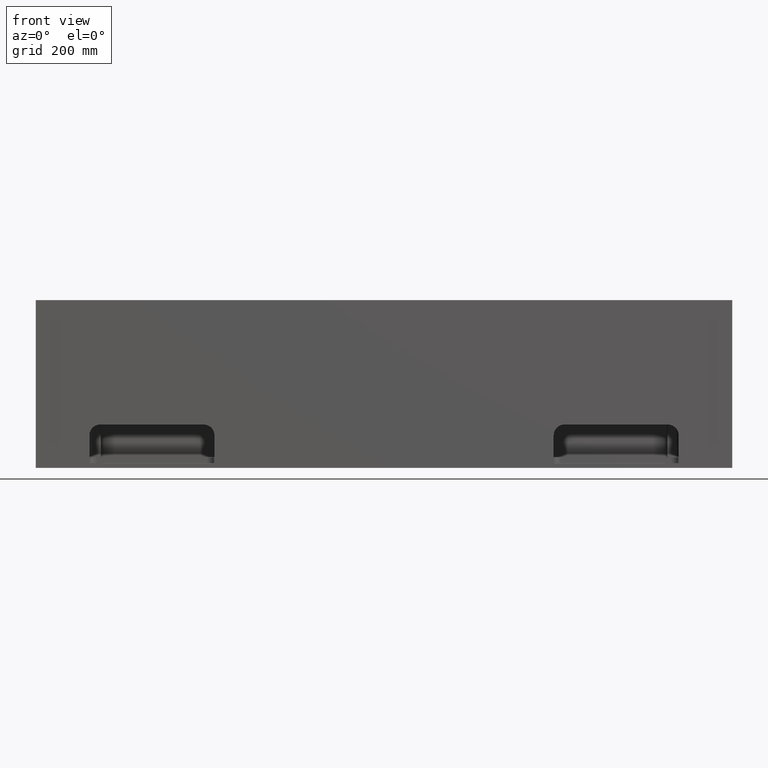
[diagram: clean part render]
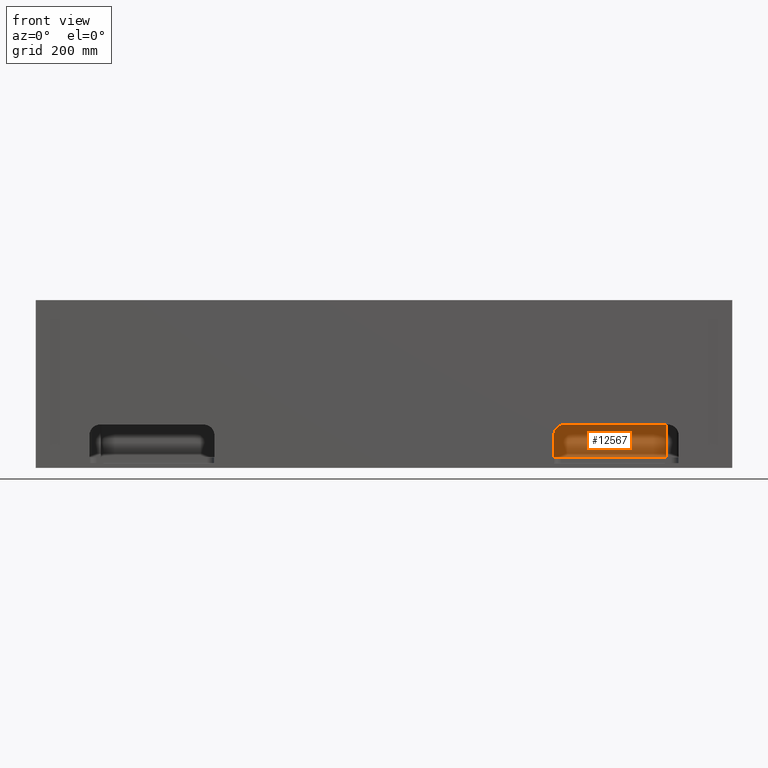
[diagram: same view with one face highlighted and labeled with its STEP entity id]
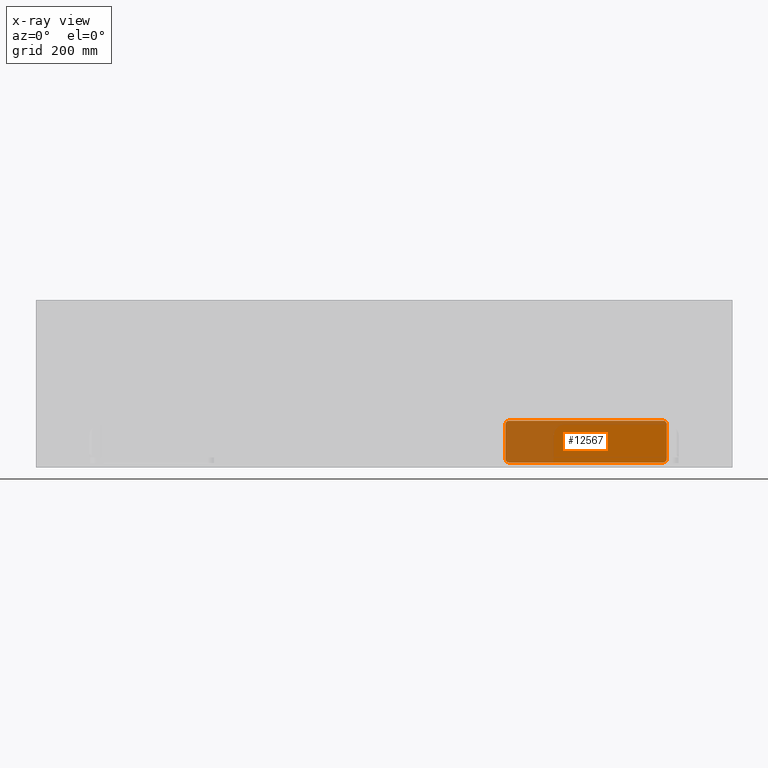
[diagram: x-ray of the same camera — body ghosted, the highlighted face saturated]
A machine part, front view. The second image highlights one B-rep face of the part: STEP entity #12567.
The next image is the same camera in x-ray: the body ghosted, the highlighted face saturated — about 37% of this face is hidden behind the body in this view.
In plain terms, the highlighted planar face has unit normal (0, 1, 0).
Its self-contained STEP definition (entity closure, byte-faithful):
#431 = FACE_OUTER_BOUND ( 'NONE', #17060, .T. ) ;
#827 = CARTESIAN_POINT ( 'NONE',  ( 1315.147245568673043, 390.0000000000000000, -444.8561811815712304 ) ) ;
#1313 = VERTEX_POINT ( 'NONE', #17855 ) ;
#2574 = VECTOR ( 'NONE', #15212, 1000.000000000000000 ) ;
#2916 = LINE ( 'NONE', #13942, #28858 ) ;
#3511 = CARTESIAN_POINT ( 'NONE',  ( 1325.143818818428372, 390.0000000000000000, -454.8527544313267867 ) ) ;
#4187 = CARTESIAN_POINT ( 'NONE',  ( 1315.147245568673043, 390.0000000000000000, -336.0000000000000568 ) ) ;
#4285 = EDGE_CURVE ( 'NONE', #29988, #29204, #6299, .T. ) ;
#6299 = LINE ( 'NONE', #17301, #23766 ) ;
#7908 = CARTESIAN_POINT ( 'NONE',  ( 1325.143818818428372, 390.0000000000000000, -454.8527544313267867 ) ) ;
#8727 = DIRECTION ( 'NONE',  ( 0.0000000000000000000, 0.0000000000000000000, 1.000000000000000000 ) ) ;
#8813 = EDGE_CURVE ( 'NONE', #20302, #9355, #12109, .T. ) ;
#9301 = EDGE_CURVE ( 'NONE', #29204, #16487, #12596, .T. ) ;
#9355 = VERTEX_POINT ( 'NONE', #31240 ) ;
#9365 = CARTESIAN_POINT ( 'NONE',  ( 1319.287131053295298, 390.0000000000000000, -338.1472455686736112 ) ) ;
#10107 = ORIENTED_EDGE ( 'NONE', *, *, #4285, .F. ) ;
#10488 = CARTESIAN_POINT ( 'NONE',  ( 1762.712868946704020, 390.0000000000000000, -454.8527544313267867 ) ) ;
#10587 = CARTESIAN_POINT ( 'NONE',  ( 1766.852754431326048, 389.9999999999998863, -342.2871310532960933 ) ) ;
#11434 = PLANE ( 'NONE',  #30286 ) ;
#12109 = LINE ( 'NONE', #23083, #34101 ) ;
#12567 = ADVANCED_FACE ( 'NONE', ( #431 ), #11434, .F. ) ;
#12596 =( BOUNDED_CURVE ( )  B_SPLINE_CURVE ( 3, ( #3511, #14550, #25526, #827 ),
 .UNSPECIFIED., .F., .T. ) 
 B_SPLINE_CURVE_WITH_KNOTS ( ( 4, 4 ),
 ( 2.356537106530530057, 3.926648200649078380 ),
 .UNSPECIFIED. ) 
 CURVE ( )  GEOMETRIC_REPRESENTATION_ITEM ( )  RATIONAL_B_SPLINE_CURVE ( ( 1.000000000000000000, 0.8048993373437826060, 0.8048993373437826060, 1.000000000000000000 ) ) 
 REPRESENTATION_ITEM ( '' )  );
#13859 = CARTESIAN_POINT ( 'NONE',  ( 1756.856181181570719, 390.0000000000000000, -454.8527544313267867 ) ) ;
#13942 = CARTESIAN_POINT ( 'NONE',  ( 1768.999999999999545, 390.0000000000000000, -338.1472455686733838 ) ) ;
#14550 = CARTESIAN_POINT ( 'NONE',  ( 1319.287131053295298, 390.0000000000000000, -454.8527544313267867 ) ) ;
#15110 = ORIENTED_EDGE ( 'NONE', *, *, #31722, .F. ) ;
#15212 = DIRECTION ( 'NONE',  ( 0.0000000000000000000, 0.0000000000000000000, 1.000000000000000000 ) ) ;
#15639 =( BOUNDED_CURVE ( )  B_SPLINE_CURVE ( 3, ( #24278, #35131, #10587, #21572 ),
 .UNSPECIFIED., .F., .T. ) 
 B_SPLINE_CURVE_WITH_KNOTS ( ( 4, 4 ),
 ( 2.356537106530529613, 3.926648200649078380 ),
 .UNSPECIFIED. ) 
 CURVE ( )  GEOMETRIC_REPRESENTATION_ITEM ( )  RATIONAL_B_SPLINE_CURVE ( ( 1.000000000000000000, 0.8048993373437824950, 0.8048993373437824950, 1.000000000000000000 ) ) 
 REPRESENTATION_ITEM ( '' )  );
#16487 = VERTEX_POINT ( 'NONE', #19789 ) ;
#17060 = EDGE_LOOP ( 'NONE', ( #10107, #22912, #25266, #15110, #22515, #24862, #29885, #32189 ) ) ;
#17094 = EDGE_CURVE ( 'NONE', #24084, #1313, #23416, .T. ) ;
#17301 = CARTESIAN_POINT ( 'NONE',  ( 1768.999999999999545, 390.0000000000000000, -454.8527544313267867 ) ) ;
#17855 = CARTESIAN_POINT ( 'NONE',  ( 1325.143818818428372, 390.0000000000000000, -338.1472455686733838 ) ) ;
#18383 =( BOUNDED_CURVE ( )  B_SPLINE_CURVE ( 3, ( #24187, #35035, #10488, #21478 ),
 .UNSPECIFIED., .F., .T. ) 
 B_SPLINE_CURVE_WITH_KNOTS ( ( 4, 4 ),
 ( 2.356537106530507852, 3.926648200649056175 ),
 .UNSPECIFIED. ) 
 CURVE ( )  GEOMETRIC_REPRESENTATION_ITEM ( )  RATIONAL_B_SPLINE_CURVE ( ( 1.000000000000000000, 0.8048993373437826060, 0.8048993373437826060, 1.000000000000000000 ) ) 
 REPRESENTATION_ITEM ( '' )  );
#19789 = CARTESIAN_POINT ( 'NONE',  ( 1315.147245568673043, 390.0000000000000000, -444.8561811815712304 ) ) ;
#20302 = VERTEX_POINT ( 'NONE', #23471 ) ;
#20360 = CARTESIAN_POINT ( 'NONE',  ( 1325.143818818428372, 390.0000000000000000, -338.1472455686733838 ) ) ;
#20363 = EDGE_CURVE ( 'NONE', #9355, #29988, #18383, .T. ) ;
#21478 = CARTESIAN_POINT ( 'NONE',  ( 1756.856181181570719, 390.0000000000000000, -454.8527544313267867 ) ) ;
#21572 = CARTESIAN_POINT ( 'NONE',  ( 1766.852754431326275, 390.0000000000000000, -348.1438188184290539 ) ) ;
#22420 = CARTESIAN_POINT ( 'NONE',  ( 1624.999999999999545, 390.0000000000000000, -235.0000000000000853 ) ) ;
#22515 = ORIENTED_EDGE ( 'NONE', *, *, #23615, .F. ) ;
#22912 = ORIENTED_EDGE ( 'NONE', *, *, #20363, .F. ) ;
#23054 = CARTESIAN_POINT ( 'NONE',  ( 1315.147245568673043, 390.0000000000000000, -348.1438188184290539 ) ) ;
#23083 = CARTESIAN_POINT ( 'NONE',  ( 1766.852754431326275, 390.0000000000000000, -336.0000000000000568 ) ) ;
#23416 =( BOUNDED_CURVE ( )  B_SPLINE_CURVE ( 3, ( #23054, #33939, #9365, #20360 ),
 .UNSPECIFIED., .F., .T. ) 
 B_SPLINE_CURVE_WITH_KNOTS ( ( 4, 4 ),
 ( 2.356537106530507852, 3.926648200649056175 ),
 .UNSPECIFIED. ) 
 CURVE ( )  GEOMETRIC_REPRESENTATION_ITEM ( )  RATIONAL_B_SPLINE_CURVE ( ( 1.000000000000000000, 0.8048993373437826060, 0.8048993373437826060, 1.000000000000000000 ) ) 
 REPRESENTATION_ITEM ( '' )  );
#23471 = CARTESIAN_POINT ( 'NONE',  ( 1766.852754431326275, 390.0000000000000000, -348.1438188184290539 ) ) ;
#23615 = EDGE_CURVE ( 'NONE', #1313, #29657, #2916, .T. ) ;
#23766 = VECTOR ( 'NONE', #28273, 1000.000000000000000 ) ;
#24084 = VERTEX_POINT ( 'NONE', #31782 ) ;
#24187 = CARTESIAN_POINT ( 'NONE',  ( 1766.852754431326048, 390.0000000000000000, -444.8561811815712304 ) ) ;
#24278 = CARTESIAN_POINT ( 'NONE',  ( 1756.856181181570719, 390.0000000000000000, -338.1472455686733838 ) ) ;
#24862 = ORIENTED_EDGE ( 'NONE', *, *, #17094, .F. ) ;
#24928 = DIRECTION ( 'NONE',  ( 1.000000000000000000, 0.0000000000000000000, 0.0000000000000000000 ) ) ;
#25266 = ORIENTED_EDGE ( 'NONE', *, *, #8813, .F. ) ;
#25526 = CARTESIAN_POINT ( 'NONE',  ( 1315.147245568673043, 390.0000000000000000, -450.7128689467040772 ) ) ;
#26542 = CARTESIAN_POINT ( 'NONE',  ( 1756.856181181570719, 390.0000000000000000, -338.1472455686733838 ) ) ;
#28273 = DIRECTION ( 'NONE',  ( -1.000000000000000000, 0.0000000000000000000, 0.0000000000000000000 ) ) ;
#28858 = VECTOR ( 'NONE', #24928, 1000.000000000000000 ) ;
#28879 = LINE ( 'NONE', #4187, #2574 ) ;
#29204 = VERTEX_POINT ( 'NONE', #7908 ) ;
#29639 = EDGE_CURVE ( 'NONE', #16487, #24084, #28879, .T. ) ;
#29657 = VERTEX_POINT ( 'NONE', #26542 ) ;
#29885 = ORIENTED_EDGE ( 'NONE', *, *, #29639, .F. ) ;
#29988 = VERTEX_POINT ( 'NONE', #13859 ) ;
#30286 = AXIS2_PLACEMENT_3D ( 'NONE', #22420, #33313, #8727 ) ;
#31240 = CARTESIAN_POINT ( 'NONE',  ( 1766.852754431326048, 390.0000000000000000, -444.8561811815712304 ) ) ;
#31722 = EDGE_CURVE ( 'NONE', #29657, #20302, #15639, .T. ) ;
#31782 = CARTESIAN_POINT ( 'NONE',  ( 1315.147245568673043, 390.0000000000000000, -348.1438188184290539 ) ) ;
#32189 = ORIENTED_EDGE ( 'NONE', *, *, #9301, .F. ) ;
#33313 = DIRECTION ( 'NONE',  ( 0.0000000000000000000, 1.000000000000000000, 0.0000000000000000000 ) ) ;
#33939 = CARTESIAN_POINT ( 'NONE',  ( 1315.147245568673043, 390.0000000000000000, -342.2871310532960933 ) ) ;
#33967 = DIRECTION ( 'NONE',  ( -2.293849224432141861E-16, 0.0000000000000000000, -1.000000000000000000 ) ) ;
#34101 = VECTOR ( 'NONE', #33967, 1000.000000000000000 ) ;
#35035 = CARTESIAN_POINT ( 'NONE',  ( 1766.852754431325820, 390.0000000000000000, -450.7128689467040772 ) ) ;
#35131 = CARTESIAN_POINT ( 'NONE',  ( 1762.712868946703338, 389.9999999999998863, -338.1472455686735543 ) ) ;